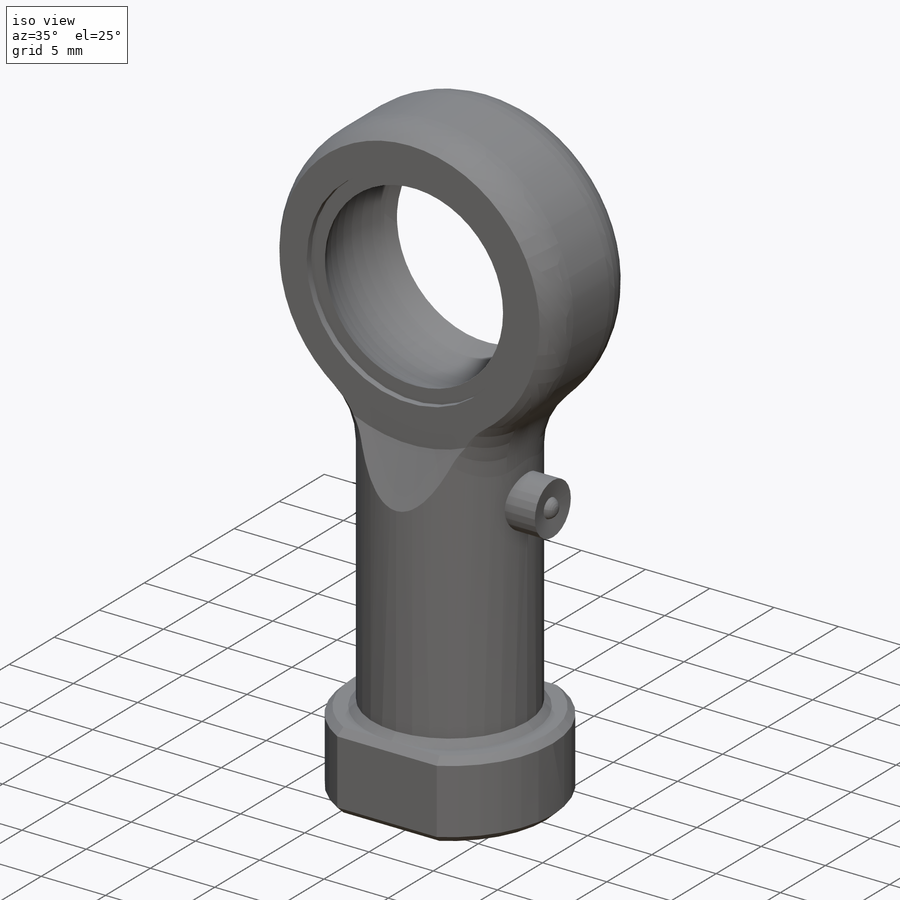
[diagram: iso view]
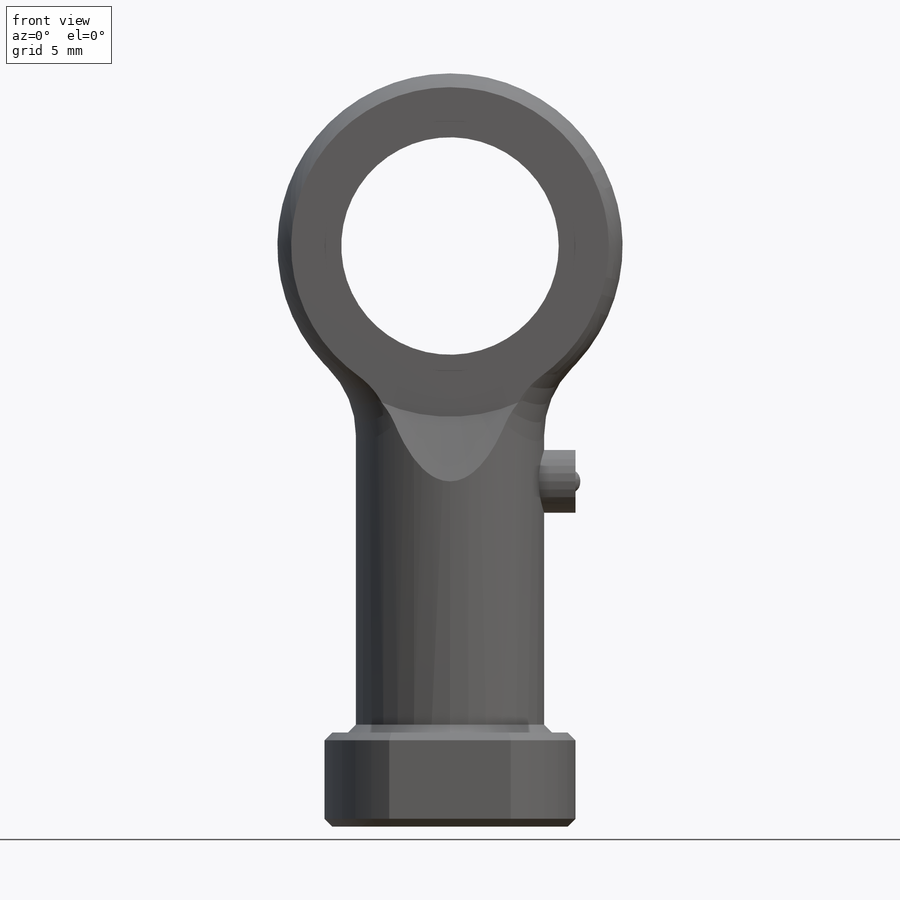
[diagram: front view]
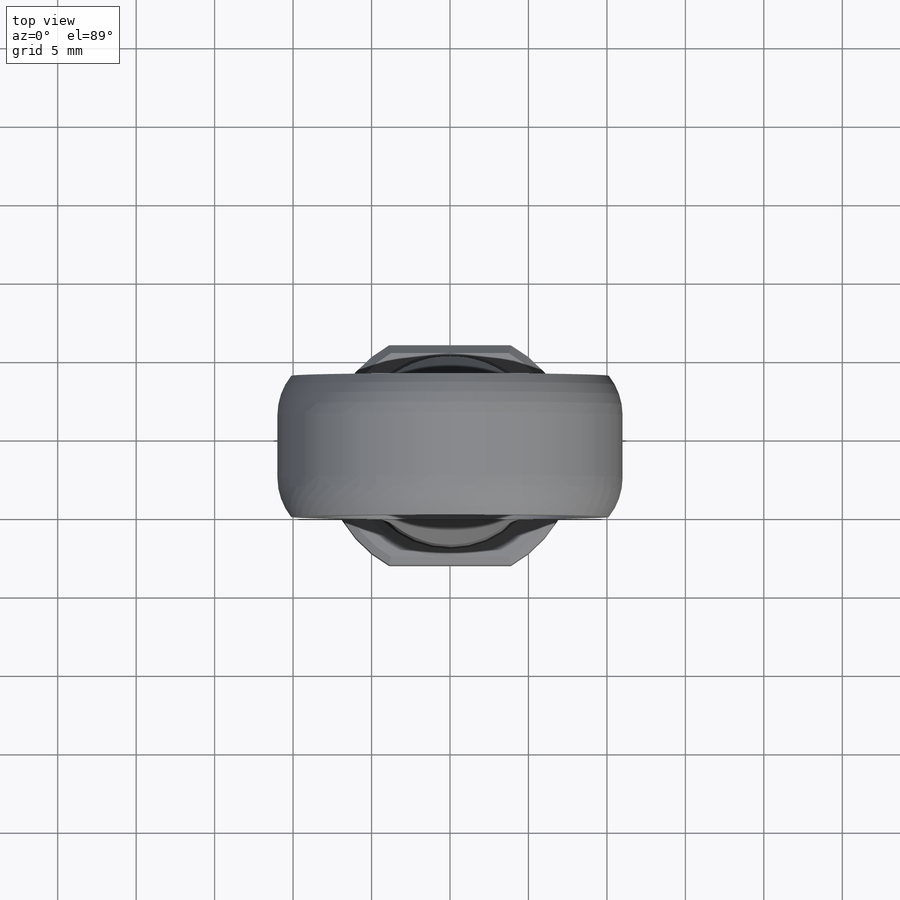
[diagram: top view]
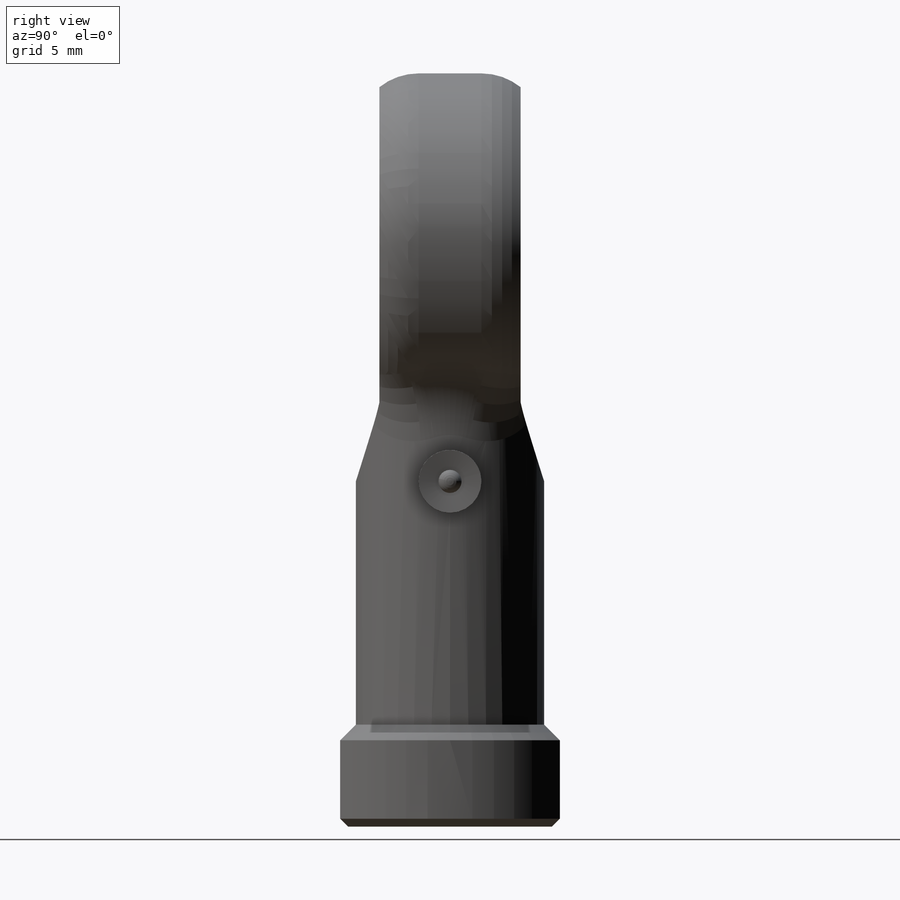
[diagram: right view]
SOLIDWORKS PART (.sldprt)
format: sldprt  version: not decoded by parser v0  size: 439,296 bytes
history: native  units: mm
features: sketch x12, cut_extrude x7, extrude x4, fillet x4, plane x3, chamfer x3, material x1, cut_revolve x1 (+10 scaffold rows collapsed)
feature tree (45):
  scaffold x10  (default folders/planes/origin — collapsed)
  material  "Acero inoxidable al cromo"
  plane  "Alzado"
  plane  "Planta"
  plane  "Vista lateral"
  sketch  "Croquis1"  dims[D1=6.0mm]
  extrude  "Saliente-Extruir1"  Depth=12mm
  fillet  "Redondeo1"  Radius=6mm
  fillet  "Redondeo3"  Radius=4mm
  sketch  "Croquis2"  dims[D1=~7.982831mm]
  extrude  "Saliente-Extruir2"  Depth=6mm
  sketch  "Croquis3"  dims[D1=~6.194464mm]
  cut_extrude  "Cortar-Extruir1"  Depth=6mm
  sketch  "Croquis4"  dims[D1=11.0mm]
  cut_extrude  "Cortar-Extruir4"  Depth=1.5mm
  sketch  "Croquis6"  dims[D1=~14.767936mm]
  cut_extrude  "Cortar-Extruir5"  Depth=1.5mm
  sketch  "Croquis7"  dims[D1=7.5mm]
  cut_revolve  "Cortar-Revolución1"  Angle=360deg
  fillet  "Redondeo4"  Radius=6mm
  sketch  "Croquis8"  dims[D1=~7.862185mm]
  cut_extrude  "Cortar-Extruir6"  Depth=0.5mm
  sketch  "Croquis9"  dims[D1=~7.732298mm]
  cut_extrude  "Cortar-Extruir7"  Depth=0.5mm
  chamfer  "Chaflán2"  Distance=0.5mm Angle=45deg
  chamfer  "Chaflán3"  Distance=0.5mm Angle=45deg
  sketch  "Croquis10"  dims[D1=~3.154699mm]
  cut_extrude  "Cortar-Extruir8"  Depth=20mm
  chamfer  "Chaflán4"  Distance=0.5mm Angle=45deg
  sketch  "Croquis11"  dims[D1=15.0mm]
  extrude  "Saliente-Extruir3"  Depth=8mm
  sketch  "Croquis13"
  cut_extrude  "Cortar-Extruir9"  Depth=0.2mm
  sketch  "Croquis14"
  extrude  "Saliente-Extruir4"  Depth=0.5mm
  fillet  "Redondeo5"  Radius=0.7mm
decode coverage: 29 of 31 modeling features carry decoded parameters
note: ~ marks probable driven/reference dimensions
note: suppression state not decoded; provenance and decode notes live in map.json
